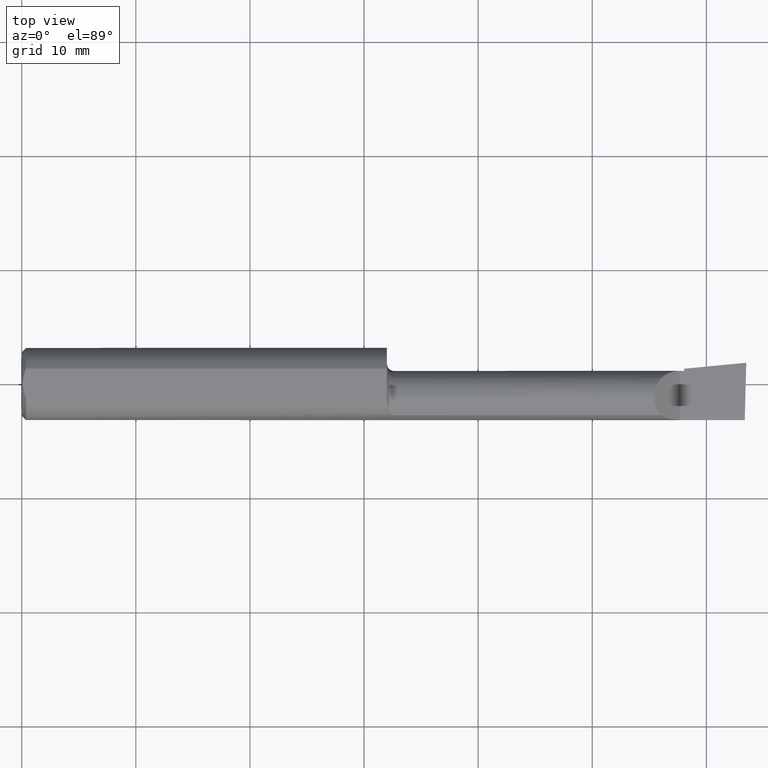
[diagram: clean part render]
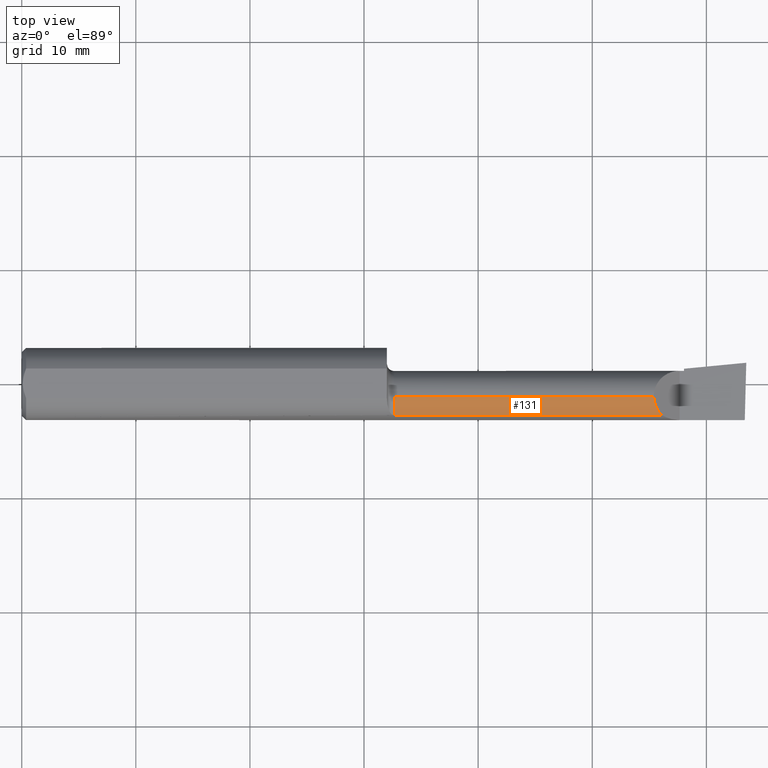
[diagram: same view with one face highlighted and labeled with its STEP entity id]
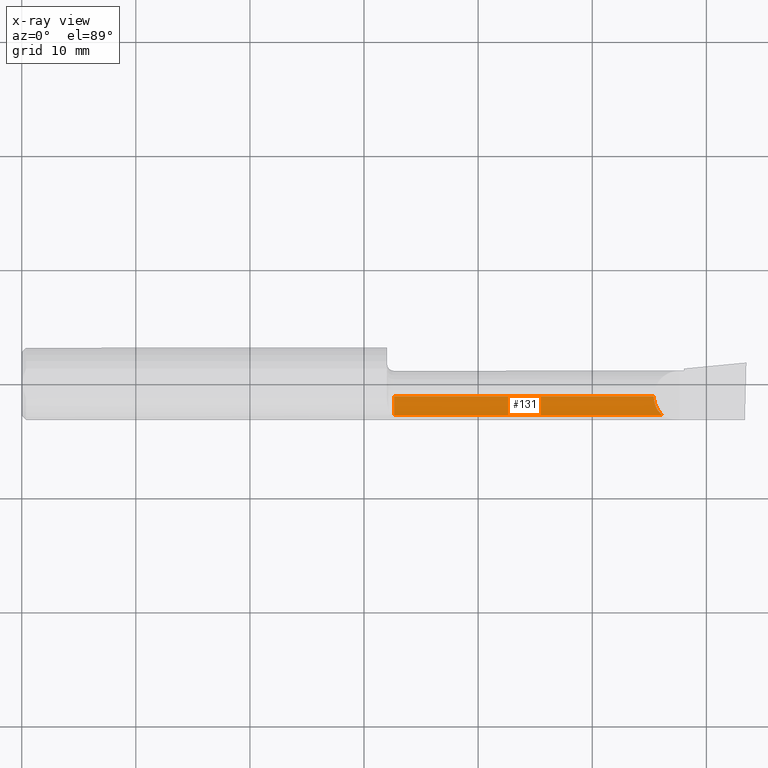
[diagram: x-ray of the same camera — body ghosted, the highlighted face saturated]
A machine part, top view. The second image highlights one B-rep face of the part: STEP entity #131.
The next image is the same camera in x-ray: the body ghosted, the highlighted face saturated — about 0% of this face is hidden behind the body in this view.
In plain terms, the highlighted cylindrical surface (edge-blend (fillet) strip) has radius 2.2644 mm, axis along (-1, -0, -0).
Its self-contained STEP definition (entity closure, byte-faithful):
#5 = EDGE_LOOP ( 'NONE', ( #502, #96, #547, #313 ) ) ;
#44 = CIRCLE ( 'NONE', #345, 0.08914999999999986824 ) ;
#68 = DIRECTION ( 'NONE',  ( 0.0000000000000000000, 0.0000000000000000000, 1.000000000000000000 ) ) ;
#72 = VERTEX_POINT ( 'NONE', #561 ) ;
#87 = VECTOR ( 'NONE', #421, 39.37007874015748143 ) ;
#96 = ORIENTED_EDGE ( 'NONE', *, *, #226, .T. ) ;
#100 = EDGE_CURVE ( 'NONE', #72, #728, #720, .T. ) ;
#131 = ADVANCED_FACE ( 'NONE', ( #180 ), #242, .T. ) ;
#170 = CARTESIAN_POINT ( 'NONE',  ( 0.0000000000000000000, -0.04399999999999999745, 0.0000000000000000000 ) ) ;
#180 = FACE_OUTER_BOUND ( 'NONE', #5, .T. ) ;
#195 = CARTESIAN_POINT ( 'NONE',  ( 1.785000000000000142, -0.1088159090909092686, 0.06120964326573853642 ) ) ;
#201 = CARTESIAN_POINT ( 'NONE',  ( 1.285000000000000142, -0.1088159090909091853, 0.06120964326573852948 ) ) ;
#211 = EDGE_CURVE ( 'NONE', #717, #72, #257, .T. ) ;
#226 = EDGE_CURVE ( 'NONE', #728, #459, #403, .T. ) ;
#242 = CYLINDRICAL_SURFACE ( 'NONE', #553, 0.08914999999999992375 ) ;
#253 = DIRECTION ( 'NONE',  ( 0.0000000000000000000, 0.0000000000000000000, 1.000000000000000000 ) ) ;
#257 = LINE ( 'NONE', #195, #87 ) ;
#280 = VECTOR ( 'NONE', #599, 39.37007874015748143 ) ;
#283 = CARTESIAN_POINT ( 'NONE',  ( 1.285000000000000142, -0.04399999999999999745, 0.0000000000000000000 ) ) ;
#291 = DIRECTION ( 'NONE',  ( -1.000000000000000000, -0.0000000000000000000, -0.0000000000000000000 ) ) ;
#313 = ORIENTED_EDGE ( 'NONE', *, *, #211, .T. ) ;
#343 = DIRECTION ( 'NONE',  ( -1.000000000000000000, -0.0000000000000000000, -0.0000000000000000000 ) ) ;
#345 = AXIS2_PLACEMENT_3D ( 'NONE', #283, #343, #253 ) ;
#396 = CARTESIAN_POINT ( 'NONE',  ( 2.180849999999999067, -0.06888227343086726628, 0.08914999999999993763 ) ) ;
#403 = LINE ( 'NONE', #534, #280 ) ;
#420 = CARTESIAN_POINT ( 'NONE',  ( 2.180849999999999511, -0.04399999999999999745, 0.08914999999999992375 ) ) ;
#421 = DIRECTION ( 'NONE',  ( 1.000000000000000000, 0.0000000000000000000, 0.0000000000000000000 ) ) ;
#459 = VERTEX_POINT ( 'NONE', #460 ) ;
#460 = CARTESIAN_POINT ( 'NONE',  ( 1.285000000000000142, -0.04399999999999999745, 0.08914999999999986824 ) ) ;
#461 = CARTESIAN_POINT ( 'NONE',  ( 2.208790356734260829, -0.1088159090909091714, 0.06120964326573862663 ) ) ;
#499 = CARTESIAN_POINT ( 'NONE',  ( 2.190699866855738698, -0.09173194857106682643, 0.07930013314426062609 ) ) ;
#502 = ORIENTED_EDGE ( 'NONE', *, *, #100, .T. ) ;
#534 = CARTESIAN_POINT ( 'NONE',  ( 0.0000000000000000000, -0.04399999999999999745, 0.08914999999999992375 ) ) ;
#537 = EDGE_CURVE ( 'NONE', #717, #459, #44, .T. ) ;
#547 = ORIENTED_EDGE ( 'NONE', *, *, #537, .F. ) ;
#553 = AXIS2_PLACEMENT_3D ( 'NONE', #170, #291, #68 ) ;
#561 = CARTESIAN_POINT ( 'NONE',  ( 2.208790356734260829, -0.1088159090909091714, 0.06120964326573862663 ) ) ;
#599 = DIRECTION ( 'NONE',  ( -1.000000000000000000, -0.0000000000000000000, -0.0000000000000000000 ) ) ;
#681 = CARTESIAN_POINT ( 'NONE',  ( 2.180849999999999511, -0.04399999999999999745, 0.08914999999999992375 ) ) ;
#717 = VERTEX_POINT ( 'NONE', #201 ) ;
#720 =( BOUNDED_CURVE ( )  B_SPLINE_CURVE ( 3, ( #461, #499, #396, #681 ),
 .UNSPECIFIED., .F., .F. ) 
 B_SPLINE_CURVE_WITH_KNOTS ( ( 4, 4 ),
 ( 5.469179596148850742, 6.283185307179586232 ),
 .UNSPECIFIED. ) 
 CURVE ( )  GEOMETRIC_REPRESENTATION_ITEM ( )  RATIONAL_B_SPLINE_CURVE ( ( 1.000000000000000000, 0.9455409277260480305, 0.9455409277260480305, 1.000000000000000000 ) ) 
 REPRESENTATION_ITEM ( '' )  );
#728 = VERTEX_POINT ( 'NONE', #420 ) ;